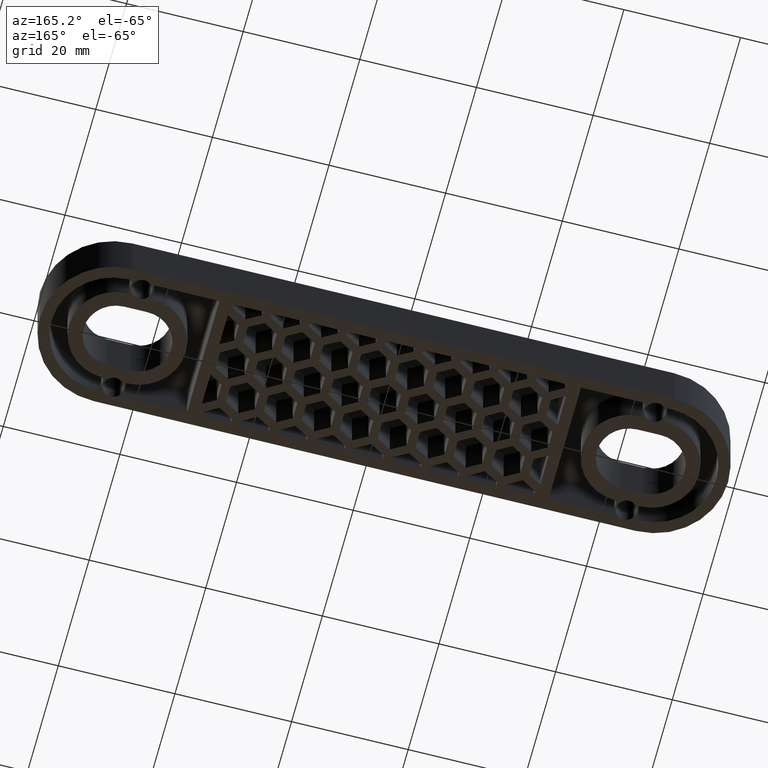
[diagram: clean part render]
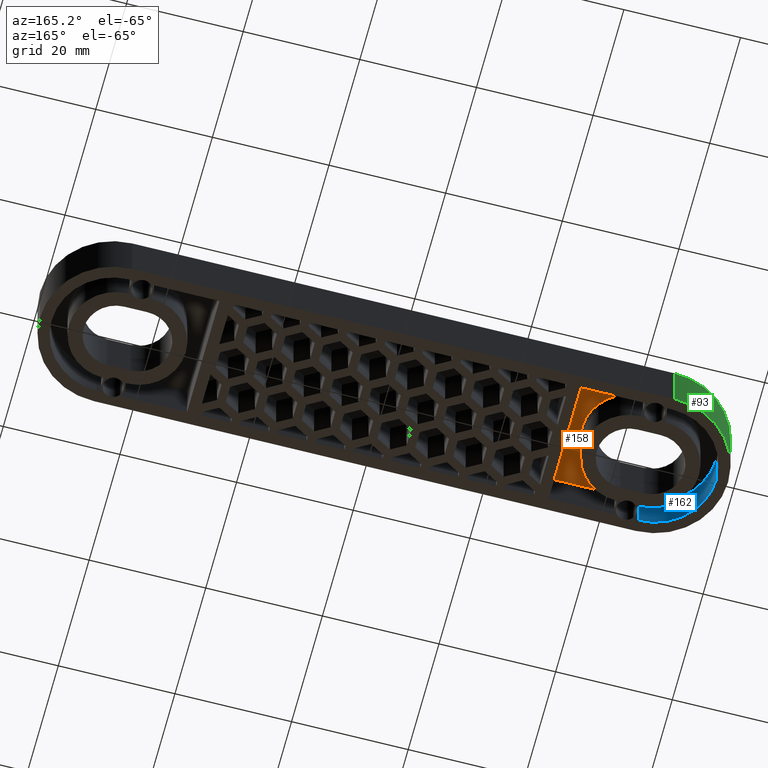
[diagram: same view with three faces highlighted in distinct colors, each labeled with its STEP entity id]
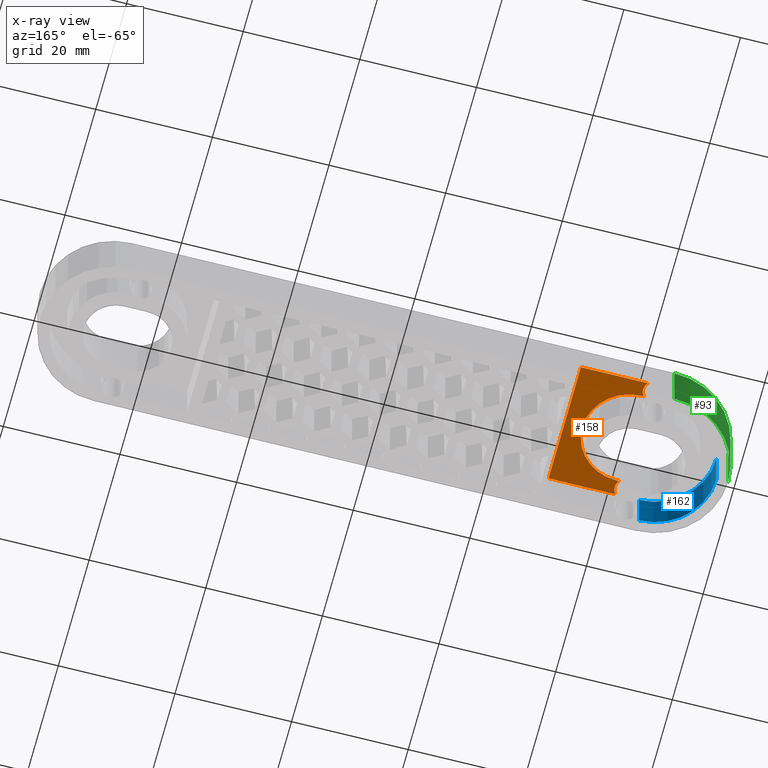
[diagram: x-ray of the same camera — body ghosted, the three highlighted faces saturated]
A machine part, auxiliary view with three faces highlighted in distinct colors.
The next image is the same camera in x-ray (body ghosted, the three faces saturated) — at least one of them is partly hidden behind the body in this view.
Their STEP definitions:

[orange] entity #158 — the highlighted planar face has unit normal (0, -0, -1).
#158 = ADVANCED_FACE( '', ( #722 ), #723, .T. );
#722 = FACE_OUTER_BOUND( '', #1614, .T. );
#723 = PLANE( '', #1615 );
#1614 = EDGE_LOOP( '', ( #3212, #3213, #3214, #3215, #3216, #3217, #3218, #3219, #3220 ) );
#1615 = AXIS2_PLACEMENT_3D( '', #3221, #3222, #3223 );
#3212 = ORIENTED_EDGE( '', *, *, #6029, .F. );
#3213 = ORIENTED_EDGE( '', *, *, #6064, .T. );
#3214 = ORIENTED_EDGE( '', *, *, #6065, .T. );
#3215 = ORIENTED_EDGE( '', *, *, #6050, .T. );
#3216 = ORIENTED_EDGE( '', *, *, #6033, .F. );
#3217 = ORIENTED_EDGE( '', *, *, #6048, .T. );
#3218 = ORIENTED_EDGE( '', *, *, #6061, .T. );
#3219 = ORIENTED_EDGE( '', *, *, #6055, .T. );
#3220 = ORIENTED_EDGE( '', *, *, #6058, .T. );
#3221 = CARTESIAN_POINT( '', ( -46.5000000000000, 4.89842541528951E-016, 8.00000000000001 ) );
#3222 = DIRECTION( '', ( 0.000000000000000, -6.12303176911189E-017, -1.00000000000000 ) );
#3223 = DIRECTION( '', ( 1.00000000000000, 0.000000000000000, 0.000000000000000 ) );
#6029 = EDGE_CURVE( '', #7479, #7481, #7482, .T. );
#6033 = EDGE_CURVE( '', #7486, #7484, #7488, .T. );
#6048 = EDGE_CURVE( '', #7486, #7505, #7506, .T. );
#6050 = EDGE_CURVE( '', #7508, #7484, #7509, .T. );
#6055 = EDGE_CURVE( '', #7516, #7514, #7517, .T. );
#6058 = EDGE_CURVE( '', #7514, #7481, #7520, .T. );
#6061 = EDGE_CURVE( '', #7505, #7516, #7524, .T. );
#6064 = EDGE_CURVE( '', #7479, #7528, #7529, .T. );
#6065 = EDGE_CURVE( '', #7528, #7508, #7530, .T. );
#7479 = VERTEX_POINT( '', #9598 );
#7481 = VERTEX_POINT( '', #9601 );
#7482 = CIRCLE( '', #9602, 2.00000000000000 );
#7484 = VERTEX_POINT( '', #9605 );
#7486 = VERTEX_POINT( '', #9608 );
#7488 = CIRCLE( '', #9611, 2.00000000000000 );
#7505 = VERTEX_POINT( '', #9640 );
#7506 = LINE( '', #9641, #9642 );
#7508 = VERTEX_POINT( '', #9645 );
#7509 = LINE( '', #9646, #9647 );
#7514 = VERTEX_POINT( '', #9654 );
#7516 = VERTEX_POINT( '', #9657 );
#7517 = CIRCLE( '', #9658, 8.00000000000000 );
#7520 = LINE( '', #9663, #9664 );
#7524 = CIRCLE( '', #9670, 7.99999999999999 );
#7528 = VERTEX_POINT( '', #9675 );
#7529 = LINE( '', #9676, #9677 );
#7530 = LINE( '', #9678, #9679 );
#9598 = CARTESIAN_POINT( '', ( -42.4387505004004, 10.5000000000000, 8.00000000000001 ) );
#9601 = CARTESIAN_POINT( '', ( -42.4387505004004, 8.00000000000000, 8.00000799998492 ) );
#9602 = AXIS2_PLACEMENT_3D( '', #11599, #11600, #11601 );
#9605 = CARTESIAN_POINT( '', ( -42.4387505004004, -10.5000000000000, 8.00000000000001 ) );
#9608 = CARTESIAN_POINT( '', ( -42.4387505004004, -8.00000000000000, 8.00000799998492 ) );
#9611 = AXIS2_PLACEMENT_3D( '', #11605, #11606, #11607 );
#9640 = CARTESIAN_POINT( '', ( -42.0000000000000, -8.00000000000000, 8.00000799998492 ) );
#9641 = CARTESIAN_POINT( '', ( -46.0000000000000, -8.00000000000000, 8.00000799998492 ) );
#9642 = VECTOR( '', #11626, 1000.00000000000 );
#9645 = CARTESIAN_POINT( '', ( -31.0000000000000, -10.5000000000000, 8.00000000000001 ) );
#9646 = CARTESIAN_POINT( '', ( -31.0000000000000, -10.5000000000000, 8.00000000000001 ) );
#9647 = VECTOR( '', #11628, 1000.00000000000 );
#9654 = CARTESIAN_POINT( '', ( -42.0000000000000, 8.00000000000000, 8.00000799998492 ) );
#9657 = CARTESIAN_POINT( '', ( -34.0000000000000, 1.00269190214221E-014, 8.00000799998492 ) );
#9658 = AXIS2_PLACEMENT_3D( '', #11635, #11636, #11637 );
#9663 = CARTESIAN_POINT( '', ( -42.0000000000000, 8.00000000000000, 8.00000799998492 ) );
#9664 = VECTOR( '', #11640, 1000.00000000000 );
#9670 = AXIS2_PLACEMENT_3D( '', #11643, #11644, #11645 );
#9675 = CARTESIAN_POINT( '', ( -31.0000000000000, 10.5000000000000, 8.00000000000001 ) );
#9676 = CARTESIAN_POINT( '', ( -46.5000000000000, 10.5000000000000, 8.00000000000001 ) );
#9677 = VECTOR( '', #11650, 1000.00000000000 );
#9678 = CARTESIAN_POINT( '', ( -31.0000000000000, 10.5000000000000, 8.00000000000001 ) );
#9679 = VECTOR( '', #11651, 1000.00000000000 );
#11599 = CARTESIAN_POINT( '', ( -44.0000000000000, 9.24999999999999, 7.99999999999999 ) );
#11600 = DIRECTION( '', ( 0.000000000000000, -6.12303176911189E-017, -1.00000000000000 ) );
#11601 = DIRECTION( '', ( 1.00000000000000, 0.000000000000000, 0.000000000000000 ) );
#11605 = CARTESIAN_POINT( '', ( -44.0000000000000, -9.25000000000000, 7.99999999999999 ) );
#11606 = DIRECTION( '', ( 0.000000000000000, -6.12303176911189E-017, -1.00000000000000 ) );
#11607 = DIRECTION( '', ( 1.00000000000000, 0.000000000000000, 0.000000000000000 ) );
#11626 = DIRECTION( '', ( 1.00000000000000, 1.15648231731787E-016, -7.08117796935346E-033 ) );
#11628 = DIRECTION( '', ( -1.00000000000000, 0.000000000000000, 0.000000000000000 ) );
#11635 = CARTESIAN_POINT( '', ( -42.0000000000000, 5.69401345930099E-015, 8.00000799998492 ) );
#11636 = DIRECTION( '', ( -1.36845553156720E-048, 6.12303176911189E-017, 1.00000000000000 ) );
#11637 = DIRECTION( '', ( 1.62874271361635E-016, 1.00000000000000, -6.12303176911189E-017 ) );
#11640 = DIRECTION( '', ( -1.00000000000000, -1.15648231731787E-016, 7.08117796935346E-033 ) );
#11643 = CARTESIAN_POINT( '', ( -42.0000000000000, 2.26619987077082E-015, 8.00000799998492 ) );
#11644 = DIRECTION( '', ( 2.73691106313441E-048, 6.12303176911189E-017, 1.00000000000000 ) );
#11645 = DIRECTION( '', ( 1.62874271361636E-016, 1.00000000000000, -6.12303176911189E-017 ) );
#11650 = DIRECTION( '', ( 1.00000000000000, 0.000000000000000, 0.000000000000000 ) );
#11651 = DIRECTION( '', ( 0.000000000000000, -1.00000000000000, 6.12303176911189E-017 ) );

[blue] entity #162 — the highlighted cylindrical surface (partial cylindrical patch) has radius 10.5 mm, axis along (0, -0, -1).
#162 = ADVANCED_FACE( '', ( #730 ), #731, .F. );
#730 = FACE_OUTER_BOUND( '', #1622, .T. );
#731 = CYLINDRICAL_SURFACE( '', #1623, 10.5000000000000 );
#1622 = EDGE_LOOP( '', ( #3251, #3252, #3253, #3254 ) );
#1623 = AXIS2_PLACEMENT_3D( '', #3255, #3256, #3257 );
#3251 = ORIENTED_EDGE( '', *, *, #6071, .F. );
#3252 = ORIENTED_EDGE( '', *, *, #6072, .F. );
#3253 = ORIENTED_EDGE( '', *, *, #5676, .T. );
#3254 = ORIENTED_EDGE( '', *, *, #6063, .T. );
#3255 = CARTESIAN_POINT( '', ( -46.5000000000000, 8.49741356322415E-031, 1.38777878078145E-014 ) );
#3256 = DIRECTION( '', ( 0.000000000000000, -6.12303176911189E-017, -1.00000000000000 ) );
#3257 = DIRECTION( '', ( -1.00000000000000, 0.000000000000000, 0.000000000000000 ) );
#5676 = EDGE_CURVE( '', #6814, #6812, #6815, .T. );
#6063 = EDGE_CURVE( '', #6812, #7525, #7527, .T. );
#6071 = EDGE_CURVE( '', #7537, #7525, #7539, .T. );
#6072 = EDGE_CURVE( '', #6814, #7537, #7540, .T. );
#6812 = VERTEX_POINT( '', #8600 );
#6814 = VERTEX_POINT( '', #8602 );
#6815 = CIRCLE( '', #8603, 10.5000000000000 );
#7525 = VERTEX_POINT( '', #9671 );
#7527 = LINE( '', #9673, #9674 );
#7537 = VERTEX_POINT( '', #9690 );
#7539 = CIRCLE( '', #9693, 10.5000000000000 );
#7540 = LINE( '', #9694, #9695 );
#8600 = CARTESIAN_POINT( '', ( -57.0000000000000, -1.73472347597681E-015, 1.38777878078145E-014 ) );
#8602 = CARTESIAN_POINT( '', ( -46.5000000000000, -10.5000000000000, 1.45207061435712E-014 ) );
#8603 = AXIS2_PLACEMENT_3D( '', #11204, #11205, #11206 );
#9671 = CARTESIAN_POINT( '', ( -57.0000000000000, -1.24488093444786E-015, 8.00000000000001 ) );
#9673 = CARTESIAN_POINT( '', ( -57.0000000000000, -1.73472347597681E-015, 1.38777878078145E-014 ) );
#9674 = VECTOR( '', #11649, 1000.00000000000 );
#9690 = CARTESIAN_POINT( '', ( -46.5000000000000, -10.5000000000000, 8.00000000000001 ) );
#9693 = AXIS2_PLACEMENT_3D( '', #11657, #11658, #11659 );
#9694 = CARTESIAN_POINT( '', ( -46.5000000000000, -10.5000000000000, 1.45207061435712E-014 ) );
#9695 = VECTOR( '', #11660, 1000.00000000000 );
#11204 = CARTESIAN_POINT( '', ( -46.5000000000000, 8.49741356322415E-031, 1.38777878078145E-014 ) );
#11205 = DIRECTION( '', ( 0.000000000000000, -6.12303176911189E-017, -1.00000000000000 ) );
#11206 = DIRECTION( '', ( 0.000000000000000, 1.00000000000000, -6.12303176911189E-017 ) );
#11649 = DIRECTION( '', ( 0.000000000000000, 6.12303176911189E-017, 1.00000000000000 ) );
#11657 = CARTESIAN_POINT( '', ( -46.5000000000000, 4.89842541528951E-016, 8.00000000000001 ) );
#11658 = DIRECTION( '', ( 0.000000000000000, -6.12303176911189E-017, -1.00000000000000 ) );
#11659 = DIRECTION( '', ( 0.000000000000000, 1.00000000000000, -6.12303176911189E-017 ) );
#11660 = DIRECTION( '', ( 0.000000000000000, 6.12303176911189E-017, 1.00000000000000 ) );

[green] entity #93 — the highlighted cylindrical surface (partial cylindrical patch) has radius 12.5 mm, axis along (-0, -0, -1).
#93 = ADVANCED_FACE( '', ( #592 ), #593, .T. );
#592 = FACE_OUTER_BOUND( '', #1484, .T. );
#593 = CYLINDRICAL_SURFACE( '', #1485, 12.5000000000000 );
#1484 = EDGE_LOOP( '', ( #2749, #2750, #2751, #2752 ) );
#1485 = AXIS2_PLACEMENT_3D( '', #2753, #2754, #2755 );
#2749 = ORIENTED_EDGE( '', *, *, #5577, .T. );
#2750 = ORIENTED_EDGE( '', *, *, #5967, .F. );
#2751 = ORIENTED_EDGE( '', *, *, #5926, .F. );
#2752 = ORIENTED_EDGE( '', *, *, #5968, .T. );
#2753 = CARTESIAN_POINT( '', ( -46.5000000000000, 7.53444859103053E-031, 1.38777878078145E-014 ) );
#2754 = DIRECTION( '', ( -5.60519385729927E-049, -6.12303176911189E-017, -1.00000000000000 ) );
#2755 = DIRECTION( '', ( -1.00000000000000, -6.12303176911189E-017, 3.74915180455535E-033 ) );
#5577 = EDGE_CURVE( '', #6623, #6621, #6624, .T. );
#5926 = EDGE_CURVE( '', #7311, #7313, #7314, .T. );
#5967 = EDGE_CURVE( '', #7313, #6621, #7393, .T. );
#5968 = EDGE_CURVE( '', #7311, #6623, #7394, .T. );
#6621 = VERTEX_POINT( '', #8356 );
#6623 = VERTEX_POINT( '', #8359 );
#6624 = CIRCLE( '', #8360, 12.5000000000000 );
#7311 = VERTEX_POINT( '', #9339 );
#7313 = VERTEX_POINT( '', #9341 );
#7314 = CIRCLE( '', #9342, 12.5000000000000 );
#7393 = LINE( '', #9453, #9454 );
#7394 = LINE( '', #9455, #9456 );
#8356 = CARTESIAN_POINT( '', ( -46.5000000000000, 12.5000000000000, 10.0000000000000 ) );
#8359 = CARTESIAN_POINT( '', ( -59.0000000000000, -2.44921270764475E-015, 10.0000000000000 ) );
#8360 = AXIS2_PLACEMENT_3D( '', #11011, #11012, #11013 );
#9339 = CARTESIAN_POINT( '', ( -59.0000000000000, -3.06151588455594E-015, 1.38777878078145E-014 ) );
#9341 = CARTESIAN_POINT( '', ( -46.5000000000000, 12.5000000000000, 1.31124088366755E-014 ) );
#9342 = AXIS2_PLACEMENT_3D( '', #11474, #11475, #11476 );
#9453 = CARTESIAN_POINT( '', ( -46.5000000000000, 12.5000000000000, 1.31124088366755E-014 ) );
#9454 = VECTOR( '', #11533, 1000.00000000000 );
#9455 = CARTESIAN_POINT( '', ( -59.0000000000000, -3.06151588455594E-015, 1.38777878078145E-014 ) );
#9456 = VECTOR( '', #11534, 1000.00000000000 );
#11011 = CARTESIAN_POINT( '', ( -46.5000000000000, 6.12303176911189E-016, 10.0000000000000 ) );
#11012 = DIRECTION( '', ( -5.60519385729927E-049, -6.12303176911189E-017, -1.00000000000000 ) );
#11013 = DIRECTION( '', ( -6.12303176911189E-017, 1.00000000000000, -6.12303176911189E-017 ) );
#11474 = CARTESIAN_POINT( '', ( -46.5000000000000, 7.53444859103053E-031, 1.38777878078145E-014 ) );
#11475 = DIRECTION( '', ( -5.60519385729927E-049, -6.12303176911189E-017, -1.00000000000000 ) );
#11476 = DIRECTION( '', ( -6.12303176911189E-017, 1.00000000000000, -6.12303176911189E-017 ) );
#11533 = DIRECTION( '', ( 0.000000000000000, 6.12303176911189E-017, 1.00000000000000 ) );
#11534 = DIRECTION( '', ( 0.000000000000000, 6.12303176911189E-017, 1.00000000000000 ) );